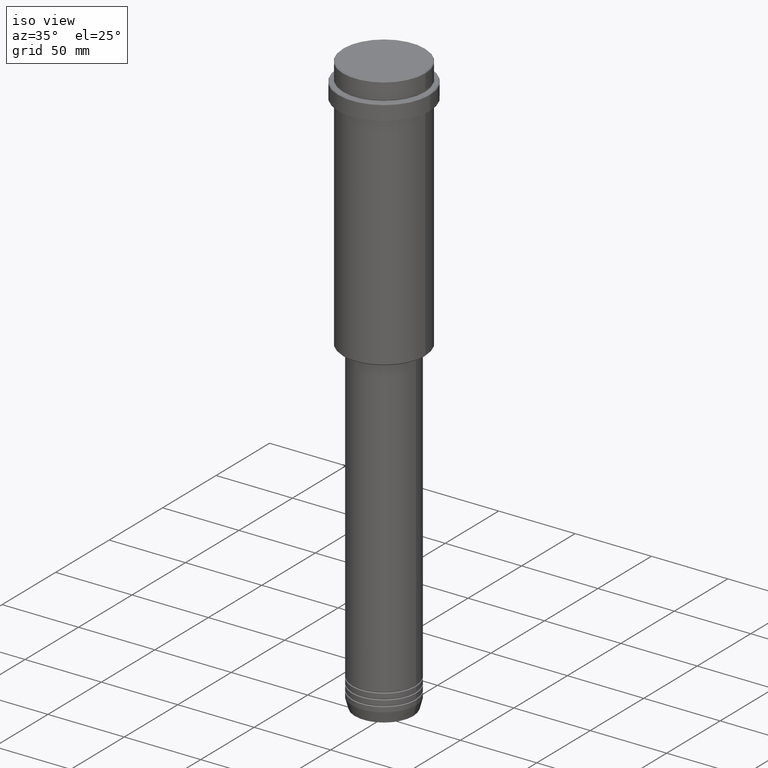
[diagram: clean part render]
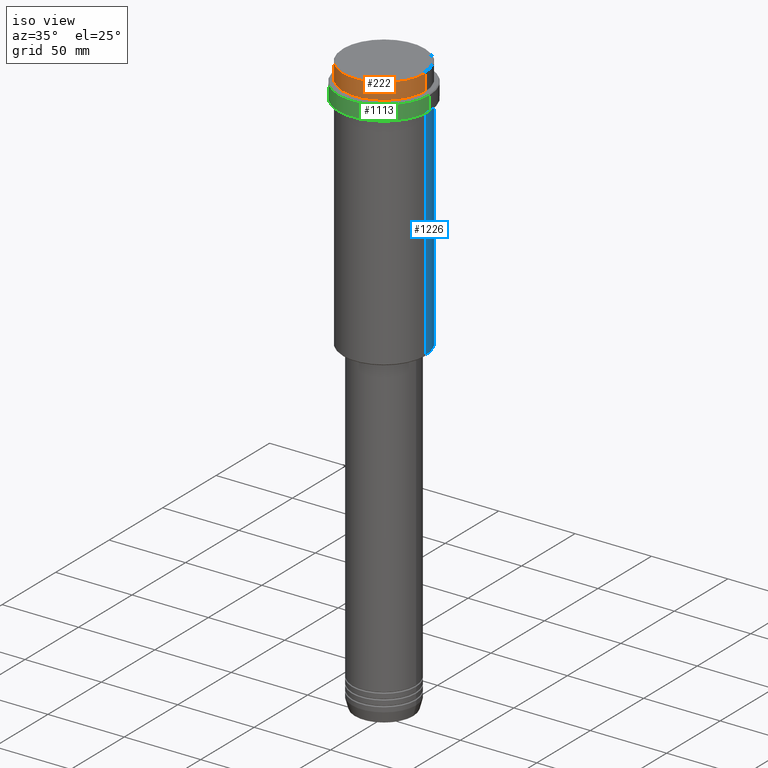
[diagram: same view with three faces highlighted in distinct colors, each labeled with its STEP entity id]
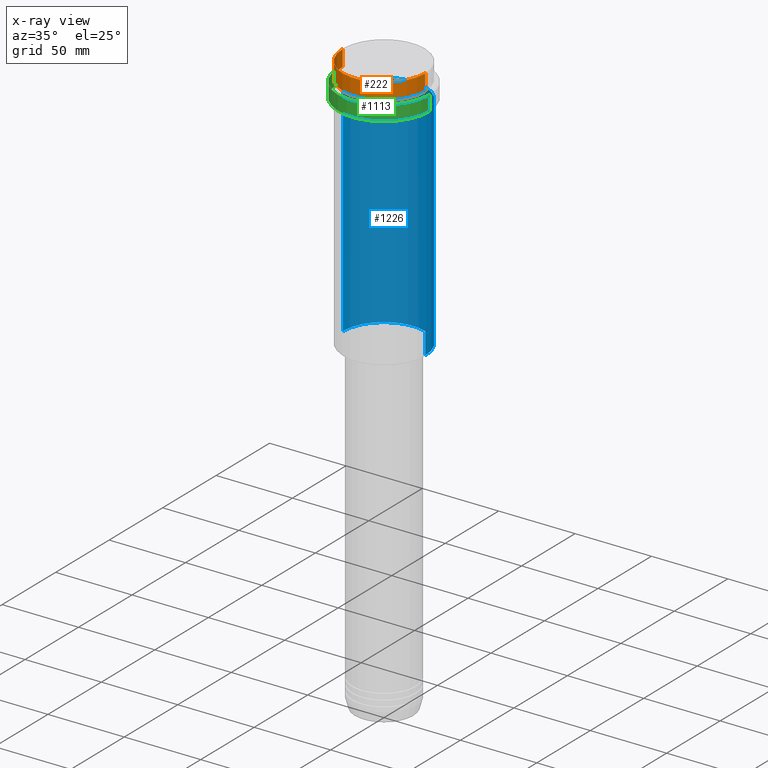
[diagram: x-ray of the same camera — body ghosted, the three highlighted faces saturated]
A machine part, iso view with three faces highlighted in distinct colors.
The next image is the same camera in x-ray (body ghosted, the three faces saturated) — at least one of them is partly hidden behind the body in this view.
Their STEP definitions:

[orange] entity #222 — the highlighted cylindrical surface (partial cylindrical patch) has radius 27 mm, axis along (-0, -0, 1).
#55 = VECTOR ( 'NONE', #1115, 1000.000000000000000 ) ;
#77 = DIRECTION ( 'NONE',  ( 1.000000000000000000, 0.000000000000000000, 0.000000000000000000 ) ) ;
#84 = EDGE_CURVE ( 'NONE', #234, #1246, #102, .T. ) ;
#102 = CIRCLE ( 'NONE', #995, 26.99999999999999645 ) ;
#106 = VERTEX_POINT ( 'NONE', #1220 ) ;
#142 = LINE ( 'NONE', #486, #55 ) ;
#205 = DIRECTION ( 'NONE',  ( 1.000000000000000000, 0.000000000000000000, 0.000000000000000000 ) ) ;
#207 = ORIENTED_EDGE ( 'NONE', *, *, #1398, .F. ) ;
#222 = ADVANCED_FACE ( 'NONE', ( #506 ), #1061, .T. ) ;
#234 = VERTEX_POINT ( 'NONE', #1280 ) ;
#267 = CIRCLE ( 'NONE', #1072, 26.99999999999999645 ) ;
#268 = EDGE_LOOP ( 'NONE', ( #207, #558, #292, #661 ) ) ;
#292 = ORIENTED_EDGE ( 'NONE', *, *, #922, .T. ) ;
#353 = DIRECTION ( 'NONE',  ( -0.000000000000000000, -0.000000000000000000, 1.000000000000000000 ) ) ;
#354 = DIRECTION ( 'NONE',  ( -0.000000000000000000, -0.000000000000000000, 1.000000000000000000 ) ) ;
#486 = CARTESIAN_POINT ( 'NONE',  ( -26.99999999999999645, 3.306546357697853339E-15, 0.000000000000000000 ) ) ;
#506 = FACE_OUTER_BOUND ( 'NONE', #268, .T. ) ;
#535 = CARTESIAN_POINT ( 'NONE',  ( 26.99999999999999645, 0.000000000000000000, -11.00000000000000178 ) ) ;
#558 = ORIENTED_EDGE ( 'NONE', *, *, #84, .T. ) ;
#661 = ORIENTED_EDGE ( 'NONE', *, *, #1272, .T. ) ;
#742 = CARTESIAN_POINT ( 'NONE',  ( 0.000000000000000000, 0.000000000000000000, -0.4999999999999761302 ) ) ;
#796 = CARTESIAN_POINT ( 'NONE',  ( 0.000000000000000000, 0.000000000000000000, -11.00000000000000178 ) ) ;
#922 = EDGE_CURVE ( 'NONE', #1246, #106, #1014, .T. ) ;
#995 = AXIS2_PLACEMENT_3D ( 'NONE', #796, #354, #1228 ) ;
#1014 = LINE ( 'NONE', #1114, #1269 ) ;
#1061 = CYLINDRICAL_SURFACE ( 'NONE', #1127, 26.99999999999999645 ) ;
#1072 = AXIS2_PLACEMENT_3D ( 'NONE', #742, #1169, #205 ) ;
#1114 = CARTESIAN_POINT ( 'NONE',  ( 26.99999999999999645, 0.000000000000000000, 0.000000000000000000 ) ) ;
#1115 = DIRECTION ( 'NONE',  ( -0.000000000000000000, -0.000000000000000000, 1.000000000000000000 ) ) ;
#1127 = AXIS2_PLACEMENT_3D ( 'NONE', #1251, #1264, #77 ) ;
#1169 = DIRECTION ( 'NONE',  ( 0.000000000000000000, 0.000000000000000000, -1.000000000000000000 ) ) ;
#1220 = CARTESIAN_POINT ( 'NONE',  ( 26.99999999999999645, 0.000000000000000000, -0.4999999999999761302 ) ) ;
#1228 = DIRECTION ( 'NONE',  ( 1.000000000000000000, 0.000000000000000000, 0.000000000000000000 ) ) ;
#1246 = VERTEX_POINT ( 'NONE', #535 ) ;
#1251 = CARTESIAN_POINT ( 'NONE',  ( 0.000000000000000000, 0.000000000000000000, 0.000000000000000000 ) ) ;
#1264 = DIRECTION ( 'NONE',  ( -0.000000000000000000, -0.000000000000000000, 1.000000000000000000 ) ) ;
#1269 = VECTOR ( 'NONE', #353, 1000.000000000000000 ) ;
#1272 = EDGE_CURVE ( 'NONE', #106, #1408, #267, .T. ) ;
#1280 = CARTESIAN_POINT ( 'NONE',  ( -26.99999999999999645, 3.306546357697853339E-15, -11.00000000000000178 ) ) ;
#1329 = CARTESIAN_POINT ( 'NONE',  ( -26.99999999999999645, 3.306546357697853339E-15, -0.4999999999999761302 ) ) ;
#1398 = EDGE_CURVE ( 'NONE', #234, #1408, #142, .T. ) ;
#1408 = VERTEX_POINT ( 'NONE', #1329 ) ;

[blue] entity #1226 — the highlighted cylindrical surface (partial cylindrical patch) has radius 27 mm, axis along (-0, -0, 1).
#22 = CARTESIAN_POINT ( 'NONE',  ( 0.000000000000000000, 0.000000000000000000, -23.00000000000000000 ) ) ;
#72 = DIRECTION ( 'NONE',  ( -1.000000000000000000, 0.000000000000000000, 0.000000000000000000 ) ) ;
#76 = DIRECTION ( 'NONE',  ( -0.000000000000000000, -0.000000000000000000, 1.000000000000000000 ) ) ;
#95 = ORIENTED_EDGE ( 'NONE', *, *, #658, .T. ) ;
#181 = CARTESIAN_POINT ( 'NONE',  ( -26.99999999999999645, 3.306546357697853339E-15, 0.000000000000000000 ) ) ;
#220 = AXIS2_PLACEMENT_3D ( 'NONE', #302, #758, #1303 ) ;
#278 = LINE ( 'NONE', #1147, #684 ) ;
#285 = LINE ( 'NONE', #181, #1179 ) ;
#302 = CARTESIAN_POINT ( 'NONE',  ( 0.000000000000000000, 0.000000000000000000, 0.000000000000000000 ) ) ;
#339 = AXIS2_PLACEMENT_3D ( 'NONE', #938, #625, #72 ) ;
#351 = CARTESIAN_POINT ( 'NONE',  ( -26.99999999999999645, 3.306546357697853339E-15, -167.5000000000000853 ) ) ;
#362 = CIRCLE ( 'NONE', #682, 26.99999999999999645 ) ;
#368 = DIRECTION ( 'NONE',  ( 1.000000000000000000, 0.000000000000000000, 0.000000000000000000 ) ) ;
#399 = VERTEX_POINT ( 'NONE', #444 ) ;
#427 = ORIENTED_EDGE ( 'NONE', *, *, #1174, .T. ) ;
#440 = FACE_OUTER_BOUND ( 'NONE', #550, .T. ) ;
#444 = CARTESIAN_POINT ( 'NONE',  ( -26.99999999999999645, 3.306546357697853339E-15, -23.00000000000000000 ) ) ;
#453 = VERTEX_POINT ( 'NONE', #761 ) ;
#522 = CARTESIAN_POINT ( 'NONE',  ( 26.99999999999999645, 0.000000000000000000, -167.5000000000000853 ) ) ;
#533 = VERTEX_POINT ( 'NONE', #351 ) ;
#550 = EDGE_LOOP ( 'NONE', ( #95, #427, #1079, #1046 ) ) ;
#577 = EDGE_CURVE ( 'NONE', #453, #399, #362, .T. ) ;
#625 = DIRECTION ( 'NONE',  ( -0.000000000000000000, -0.000000000000000000, 1.000000000000000000 ) ) ;
#646 = CYLINDRICAL_SURFACE ( 'NONE', #220, 26.99999999999999645 ) ;
#658 = EDGE_CURVE ( 'NONE', #726, #533, #1198, .T. ) ;
#682 = AXIS2_PLACEMENT_3D ( 'NONE', #22, #1337, #368 ) ;
#684 = VECTOR ( 'NONE', #1250, 1000.000000000000000 ) ;
#726 = VERTEX_POINT ( 'NONE', #522 ) ;
#758 = DIRECTION ( 'NONE',  ( -0.000000000000000000, -0.000000000000000000, 1.000000000000000000 ) ) ;
#761 = CARTESIAN_POINT ( 'NONE',  ( 26.99999999999999645, 0.000000000000000000, -23.00000000000000000 ) ) ;
#938 = CARTESIAN_POINT ( 'NONE',  ( 0.000000000000000000, 0.000000000000000000, -167.5000000000000853 ) ) ;
#1046 = ORIENTED_EDGE ( 'NONE', *, *, #1058, .F. ) ;
#1058 = EDGE_CURVE ( 'NONE', #726, #453, #278, .T. ) ;
#1079 = ORIENTED_EDGE ( 'NONE', *, *, #577, .F. ) ;
#1147 = CARTESIAN_POINT ( 'NONE',  ( 26.99999999999999645, 0.000000000000000000, 0.000000000000000000 ) ) ;
#1174 = EDGE_CURVE ( 'NONE', #533, #399, #285, .T. ) ;
#1179 = VECTOR ( 'NONE', #76, 1000.000000000000000 ) ;
#1198 = CIRCLE ( 'NONE', #339, 26.99999999999999645 ) ;
#1226 = ADVANCED_FACE ( 'NONE', ( #440 ), #646, .T. ) ;
#1250 = DIRECTION ( 'NONE',  ( -0.000000000000000000, -0.000000000000000000, 1.000000000000000000 ) ) ;
#1303 = DIRECTION ( 'NONE',  ( 1.000000000000000000, 0.000000000000000000, 0.000000000000000000 ) ) ;
#1337 = DIRECTION ( 'NONE',  ( -0.000000000000000000, -0.000000000000000000, 1.000000000000000000 ) ) ;

[green] entity #1113 — the highlighted cylindrical surface (partial cylindrical patch) has radius 30 mm, axis along (-0, -0, 1).
#18 = EDGE_CURVE ( 'NONE', #544, #1225, #1312, .T. ) ;
#32 = CARTESIAN_POINT ( 'NONE',  ( 0.000000000000000000, 0.000000000000000000, -12.50000000000006573 ) ) ;
#39 = CARTESIAN_POINT ( 'NONE',  ( 30.00000000000000000, 0.000000000000000000, 0.000000000000000000 ) ) ;
#46 = DIRECTION ( 'NONE',  ( 0.000000000000000000, 0.000000000000000000, -1.000000000000000000 ) ) ;
#52 = FACE_OUTER_BOUND ( 'NONE', #132, .T. ) ;
#63 = DIRECTION ( 'NONE',  ( -0.000000000000000000, -0.000000000000000000, 1.000000000000000000 ) ) ;
#70 = CYLINDRICAL_SURFACE ( 'NONE', #501, 30.00000000000000000 ) ;
#93 = DIRECTION ( 'NONE',  ( -0.000000000000000000, -0.000000000000000000, 1.000000000000000000 ) ) ;
#114 = LINE ( 'NONE', #1071, #1249 ) ;
#132 = EDGE_LOOP ( 'NONE', ( #1414, #921, #1035, #1396 ) ) ;
#231 = LINE ( 'NONE', #39, #1070 ) ;
#297 = DIRECTION ( 'NONE',  ( -0.000000000000000000, -0.000000000000000000, 1.000000000000000000 ) ) ;
#394 = DIRECTION ( 'NONE',  ( 1.000000000000000000, 0.000000000000000000, 0.000000000000000000 ) ) ;
#501 = AXIS2_PLACEMENT_3D ( 'NONE', #518, #297, #923 ) ;
#517 = VERTEX_POINT ( 'NONE', #1129 ) ;
#518 = CARTESIAN_POINT ( 'NONE',  ( 0.000000000000000000, 0.000000000000000000, 0.000000000000000000 ) ) ;
#525 = CIRCLE ( 'NONE', #1359, 29.99999999999999645 ) ;
#541 = CARTESIAN_POINT ( 'NONE',  ( -30.00000000000000000, 3.673940397442059178E-15, -12.50000000000006573 ) ) ;
#544 = VERTEX_POINT ( 'NONE', #575 ) ;
#575 = CARTESIAN_POINT ( 'NONE',  ( 30.00000000000000000, 0.000000000000000000, -12.50000000000006573 ) ) ;
#902 = DIRECTION ( 'NONE',  ( 1.000000000000000000, 0.000000000000000000, 0.000000000000000000 ) ) ;
#921 = ORIENTED_EDGE ( 'NONE', *, *, #1126, .T. ) ;
#923 = DIRECTION ( 'NONE',  ( 1.000000000000000000, 0.000000000000000000, 0.000000000000000000 ) ) ;
#927 = VERTEX_POINT ( 'NONE', #1322 ) ;
#1003 = DIRECTION ( 'NONE',  ( -0.000000000000000000, -0.000000000000000000, 1.000000000000000000 ) ) ;
#1020 = EDGE_CURVE ( 'NONE', #517, #544, #231, .T. ) ;
#1035 = ORIENTED_EDGE ( 'NONE', *, *, #1020, .T. ) ;
#1048 = CARTESIAN_POINT ( 'NONE',  ( 0.000000000000000000, 0.000000000000000000, -22.00000000000000355 ) ) ;
#1066 = AXIS2_PLACEMENT_3D ( 'NONE', #32, #46, #902 ) ;
#1070 = VECTOR ( 'NONE', #1003, 1000.000000000000000 ) ;
#1071 = CARTESIAN_POINT ( 'NONE',  ( -30.00000000000000000, 3.673940397442059178E-15, 0.000000000000000000 ) ) ;
#1113 = ADVANCED_FACE ( 'NONE', ( #52 ), #70, .T. ) ;
#1126 = EDGE_CURVE ( 'NONE', #927, #517, #525, .T. ) ;
#1129 = CARTESIAN_POINT ( 'NONE',  ( 29.99999999999999645, 0.000000000000000000, -22.00000000000000355 ) ) ;
#1200 = EDGE_CURVE ( 'NONE', #927, #1225, #114, .T. ) ;
#1225 = VERTEX_POINT ( 'NONE', #541 ) ;
#1249 = VECTOR ( 'NONE', #93, 1000.000000000000000 ) ;
#1312 = CIRCLE ( 'NONE', #1066, 30.00000000000000000 ) ;
#1322 = CARTESIAN_POINT ( 'NONE',  ( -29.99999999999999645, 3.673940397442058389E-15, -22.00000000000000355 ) ) ;
#1359 = AXIS2_PLACEMENT_3D ( 'NONE', #1048, #63, #394 ) ;
#1396 = ORIENTED_EDGE ( 'NONE', *, *, #18, .T. ) ;
#1414 = ORIENTED_EDGE ( 'NONE', *, *, #1200, .F. ) ;